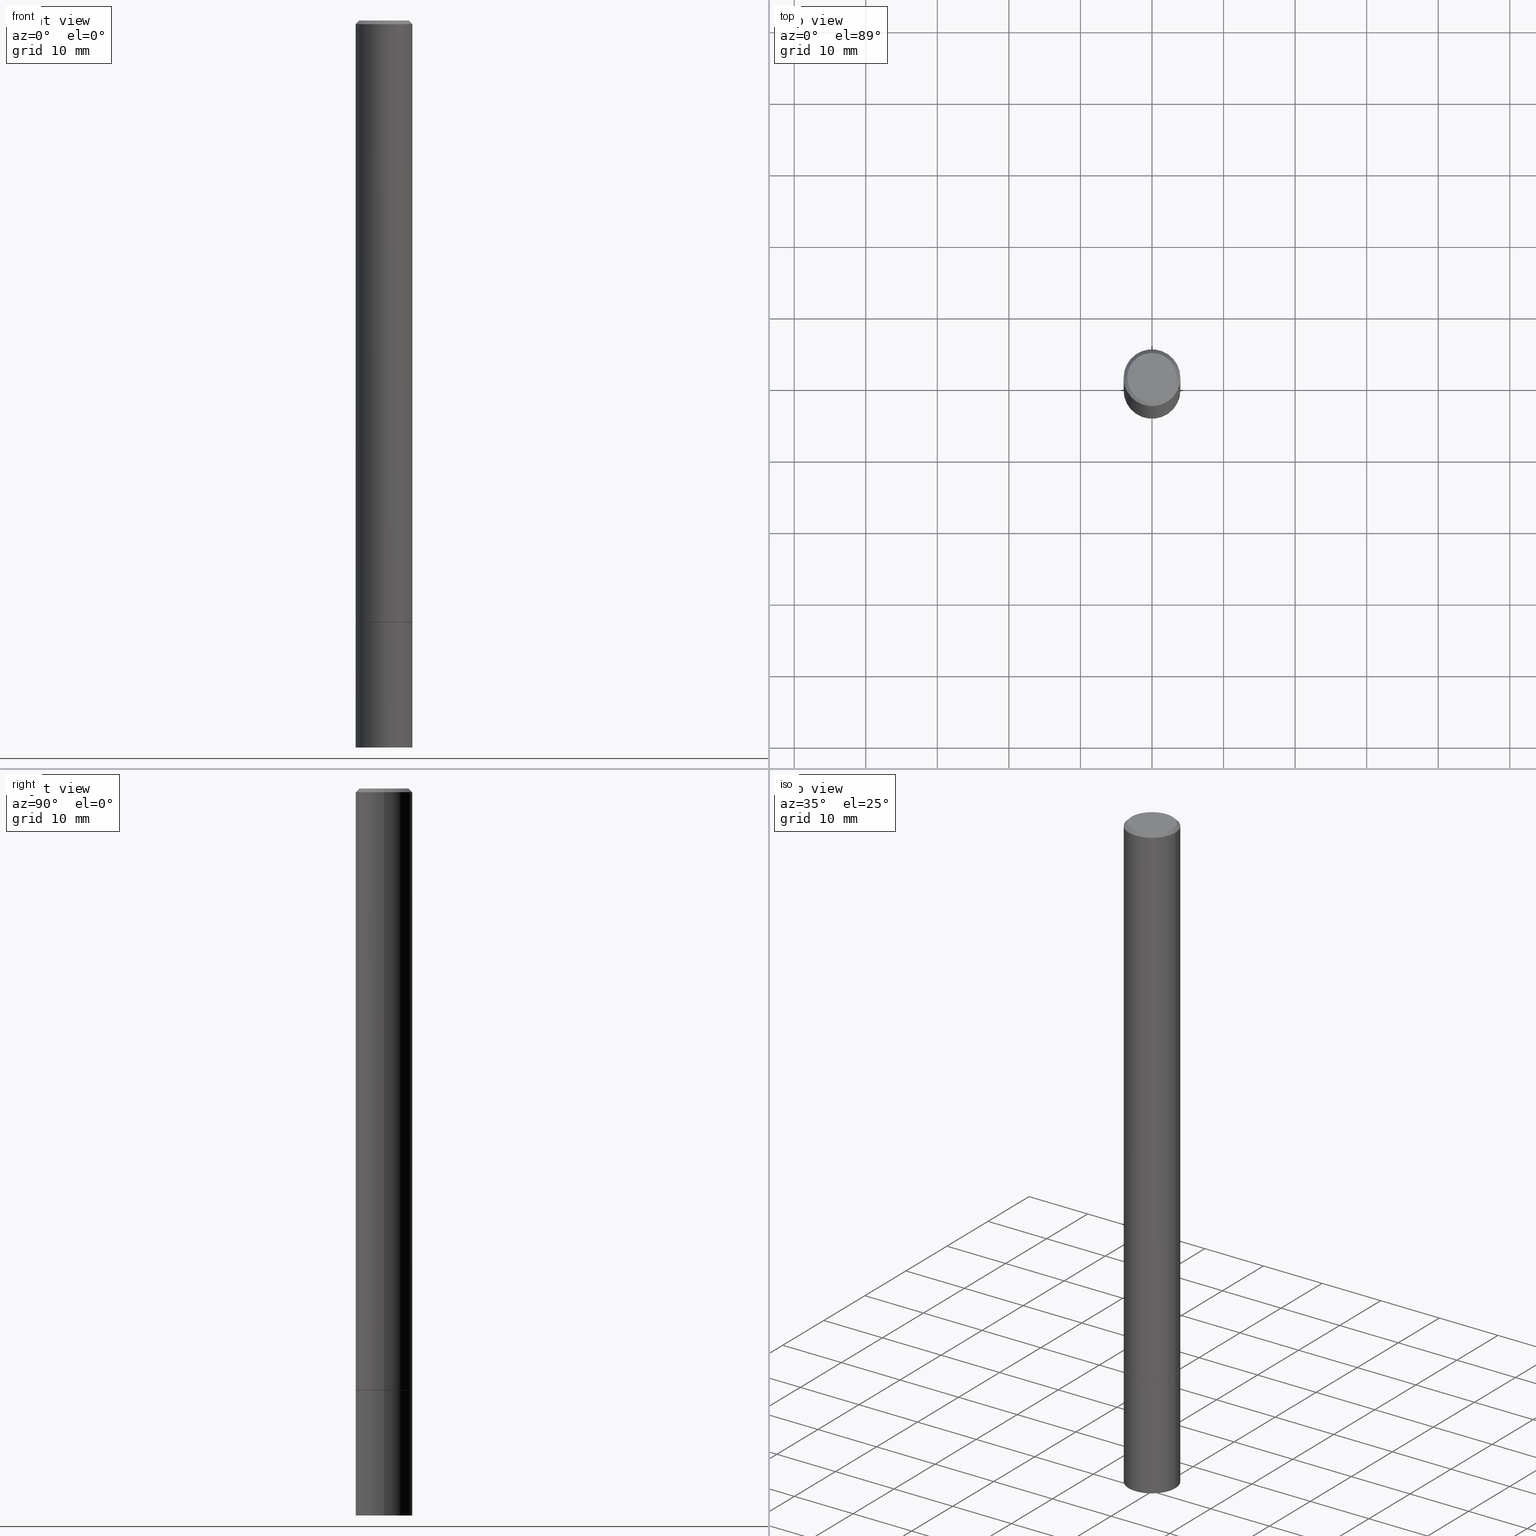
[diagram: canonical four-view strip — front | top / right | iso, engineering-drawing reading convention]
A machine part, canonical four-view strip (front | top / right | iso — engineering-drawing reading convention). The complete STEP part file that produces these views, byte-faithful:
ISO-10303-21;
HEADER;
FILE_DESCRIPTION (( 'STEP AP203' ),
    '1' );
FILE_NAME ('32263.STEP',
    '2024-02-27T14:51:23',
    ( '' ),
    ( '' ),
    'SwSTEP 2.0',
    'SolidWorks 2023',
    '' );
FILE_SCHEMA (( 'CONFIG_CONTROL_DESIGN' ));
ENDSEC;

DATA;
#1 = CARTESIAN_POINT ( 'NONE',  ( 0.1562499999999995559, -1.141782438928661752E-15, -0.02000000000000004205 ) ) ;
#2 = VERTEX_POINT ( 'NONE', #139 ) ;
#3 = CARTESIAN_POINT ( 'NONE',  ( 4.890937612370283668E-31, -6.982962677686305168E-17, -0.02000000000000004205 ) ) ;
#4 = VECTOR ( 'NONE', #261, 39.37007874015748143 ) ;
#5 = CC_DESIGN_APPROVAL ( #146, ( #249 ) ) ;
#6 = CARTESIAN_POINT ( 'NONE',  ( 0.1362499999999995659, -1.038262645562514969E-15, 6.957025900226674056E-30 ) ) ;
#7 = DIRECTION ( 'NONE',  ( -2.445468806185136597E-29, 3.491481338843145583E-15, 1.000000000000000000 ) ) ;
#8 = DIRECTION ( 'NONE',  ( 0.7071067811865466846, -7.319954787623252890E-15, -0.7071067811865483499 ) ) ;
#9 = ORIENTED_EDGE ( 'NONE', *, *, #296, .F. ) ;
#10 = LINE ( 'NONE', #98, #35 ) ;
#11 = VECTOR ( 'NONE', #337, 39.37007874015748143 ) ;
#12 = CARTESIAN_POINT ( 'NONE',  ( -0.1562500000000000000, -4.704839145218096672E-15, -3.311000000000000387 ) ) ;
#13 = DIRECTION ( 'NONE',  ( -2.445468806185136597E-29, 3.491481338843145583E-15, 1.000000000000000000 ) ) ;
#14 =( LENGTH_UNIT ( ) NAMED_UNIT ( * ) SI_UNIT ( $, .METRE. ) );
#15 = CARTESIAN_POINT ( 'NONE',  ( -0.1562500000000000000, -1.165463275018538400E-14, -4.000000000000000000 ) ) ;
#16 = CC_DESIGN_DATE_AND_TIME_ASSIGNMENT ( #205, #332, ( #249 ) ) ;
#17 = DIRECTION ( 'NONE',  ( -2.445468806185136597E-29, 3.491481338843145583E-15, 1.000000000000000000 ) ) ;
#18 = AXIS2_PLACEMENT_3D ( 'NONE', #122, #333, #250 ) ;
#19 = ADVANCED_FACE ( 'NONE', ( #82 ), #234, .T. ) ;
#20 = ORIENTED_EDGE ( 'NONE', *, *, #163, .F. ) ;
#21 = CARTESIAN_POINT ( 'NONE',  ( -0.1552499999999999991, -1.046066859698094559E-14, -3.312000000000000721 ) ) ;
#22 = AXIS2_PLACEMENT_3D ( 'NONE', #222, #42, #165 ) ;
#23 = CC_DESIGN_SECURITY_CLASSIFICATION ( #314, ( #278 ) ) ;
#24 = DIRECTION ( 'NONE',  ( -1.000000000000000000, 6.982962677686265922E-15, -4.876176775795935793E-29 ) ) ;
#25 = PERSON_AND_ORGANIZATION_ROLE ( 'classification_officer' ) ;
#26 = ORIENTED_EDGE ( 'NONE', *, *, #296, .T. ) ;
#27 = DIRECTION ( 'NONE',  ( 1.000000000000000000, -6.982962677686262766E-15, 0.000000000000000000 ) ) ;
#28 = PERSON_AND_ORGANIZATION ( #160, #322 ) ;
#29 = VERTEX_POINT ( 'NONE', #315 ) ;
#30 = DIRECTION ( 'NONE',  ( -2.445468806185136877E-29, 3.491481338843145188E-15, 1.000000000000000000 ) ) ;
#31 = APPROVAL_STATUS ( 'not_yet_approved' ) ;
#32 = CARTESIAN_POINT ( 'NONE',  ( 9.514286648347508022E-16, 0.1362499999999995659, -4.757143324173770774E-16 ) ) ;
#33 = EDGE_CURVE ( 'NONE', #138, #293, #292, .T. ) ;
#34 = CARTESIAN_POINT ( 'NONE',  ( 9.781875224740546387E-29, -1.396592535537258233E-14, -4.000000000000000000 ) ) ;
#35 = VECTOR ( 'NONE', #131, 39.37007874015748143 ) ;
#36 = DATE_AND_TIME ( #66, #218 ) ;
#37 = ORIENTED_EDGE ( 'NONE', *, *, #49, .T. ) ;
#38 = PERSON_AND_ORGANIZATION ( #160, #322 ) ;
#39 = DIRECTION ( 'NONE',  ( -2.445468806185136597E-29, 3.491481338843145583E-15, 1.000000000000000000 ) ) ;
#40 = DIRECTION ( 'NONE',  ( 2.445468806185136597E-29, -3.491481338843145583E-15, -1.000000000000000000 ) ) ;
#41 = AXIS2_PLACEMENT_3D ( 'NONE', #356, #215, #280 ) ;
#42 = DIRECTION ( 'NONE',  ( -2.438088387897960049E-29, 3.491481338843145188E-15, 1.000000000000000000 ) ) ;
#43 = DATE_AND_TIME ( #304, #64 ) ;
#44 = AXIS2_PLACEMENT_3D ( 'NONE', #3, #40, #352 ) ;
#45 = AXIS2_PLACEMENT_3D ( 'NONE', #246, #245, #208 ) ;
#46 = APPROVAL_PERSON_ORGANIZATION ( #235, #146, #320 ) ;
#47 =( NAMED_UNIT ( * ) SI_UNIT ( $, .STERADIAN. ) SOLID_ANGLE_UNIT ( ) );
#48 = DIRECTION ( 'NONE',  ( -2.445468806185136597E-29, 3.491481338843145583E-15, 1.000000000000000000 ) ) ;
#49 = EDGE_CURVE ( 'NONE', #105, #354, #68, .T. ) ;
#50 = FACE_OUTER_BOUND ( 'NONE', #180, .T. ) ;
#51 = CIRCLE ( 'NONE', #310, 0.1562500000000000000 ) ;
#52 = PLANE ( 'NONE',  #135 ) ;
#53 = PERSON_AND_ORGANIZATION_ROLE ( 'creator' ) ;
#54 = ORIENTED_EDGE ( 'NONE', *, *, #201, .T. ) ;
#55 = AXIS2_PLACEMENT_3D ( 'NONE', #302, #328, #181 ) ;
#56 = PERSON_AND_ORGANIZATION_ROLE ( 'creator' ) ;
#57 = COORDINATED_UNIVERSAL_TIME_OFFSET ( 5, 0, .BEHIND. ) ;
#58 = APPROVAL ( #326, 'UNSPECIFIED' ) ;
#59 = ORIENTED_EDGE ( 'NONE', *, *, #241, .F. ) ;
#60 = ORIENTED_EDGE ( 'NONE', *, *, #267, .F. ) ;
#61 = ORIENTED_EDGE ( 'NONE', *, *, #182, .F. ) ;
#62 = ORIENTED_EDGE ( 'NONE', *, *, #109, .F. ) ;
#63 = CONICAL_SURFACE ( 'NONE', #69, 0.1562499999999995559, 0.7853981633974471688 ) ;
#64 = LOCAL_TIME ( 9, 51, 23.00000000000000000, #124 ) ;
#65 = ADVANCED_FACE ( 'NONE', ( #316 ), #52, .T. ) ;
#66 = CALENDAR_DATE ( 2024, 27, 2 ) ;
#67 = DIRECTION ( 'NONE',  ( 1.000000000000000000, -6.982962677686268288E-15, 0.000000000000000000 ) ) ;
#68 = CIRCLE ( 'NONE', #199, 0.1562499999999995559 ) ;
#69 = AXIS2_PLACEMENT_3D ( 'NONE', #284, #221, #127 ) ;
#70 = DIRECTION ( 'NONE',  ( -2.445468806185136597E-29, 3.491481338843145583E-15, 1.000000000000000000 ) ) ;
#71 = CARTESIAN_POINT ( 'NONE',  ( -0.1562500000000000000, -1.165463275018538400E-14, -3.312000000000000277 ) ) ;
#72 = DIRECTION ( 'NONE',  ( 1.000000000000000000, -6.982962677686262766E-15, 0.000000000000000000 ) ) ;
#73 =( NAMED_UNIT ( * ) PLANE_ANGLE_UNIT ( ) SI_UNIT ( $, .RADIAN. ) );
#74 = CONICAL_SURFACE ( 'NONE', #294, 0.1552499999999999991, 0.7853981633972775267 ) ;
#75 = CC_DESIGN_PERSON_AND_ORGANIZATION_ASSIGNMENT ( #115, #56, ( #278 ) ) ;
#76 = LOCAL_TIME ( 9, 51, 23.00000000000000000, #229 ) ;
#77 = FACE_OUTER_BOUND ( 'NONE', #232, .T. ) ;
#78 = LINE ( 'NONE', #362, #262 ) ;
#79 = CARTESIAN_POINT ( 'NONE',  ( 1.091087918388576795E-15, 0.1562499999999860389, -4.000000000000000888 ) ) ;
#80 = CYLINDRICAL_SURFACE ( 'NONE', #313, 0.1562500000000000000 ) ;
#81 = EDGE_CURVE ( 'NONE', #290, #2, #143, .T. ) ;
#82 = FACE_OUTER_BOUND ( 'NONE', #330, .T. ) ;
#83 = CARTESIAN_POINT ( 'NONE',  ( 0.000000000000000000, 0.000000000000000000, 0.000000000000000000 ) ) ;
#84 = PERSON_AND_ORGANIZATION_ROLE ( 'design_supplier' ) ;
#85 = DIRECTION ( 'NONE',  ( 1.000000000000000000, -6.982962677686266711E-15, 4.876176775795935232E-29 ) ) ;
#86 = ADVANCED_FACE ( 'NONE', ( #153 ), #149, .F. ) ;
#87 = VECTOR ( 'NONE', #260, 39.37007874015748143 ) ;
#88 = VERTEX_POINT ( 'NONE', #347 ) ;
#89 = ORIENTED_EDGE ( 'NONE', *, *, #81, .T. ) ;
#90 = CARTESIAN_POINT ( 'NONE',  ( 0.1562500000000000000, -1.265138263129813571E-14, -3.311000000000000387 ) ) ;
#91 = FACE_OUTER_BOUND ( 'NONE', #351, .T. ) ;
#92 = ORIENTED_EDGE ( 'NONE', *, *, #267, .T. ) ;
#93 = AXIS2_PLACEMENT_3D ( 'NONE', #134, #48, #197 ) ;
#94 = ORIENTED_EDGE ( 'NONE', *, *, #305, .T. ) ;
#95 = SHAPE_DEFINITION_REPRESENTATION ( #111, #164 ) ;
#96 = LINE ( 'NONE', #125, #123 ) ;
#97 = ORIENTED_EDGE ( 'NONE', *, *, #305, .F. ) ;
#98 = CARTESIAN_POINT ( 'NONE',  ( -0.1562499999999998057, 1.110223024625155160E-15, -7.685836078523279949E-30 ) ) ;
#99 = APPROVAL_ROLE ( '' ) ;
#100 = ADVANCED_FACE ( 'NONE', ( #303 ), #184, .T. ) ;
#101 =( CONVERSION_BASED_UNIT ( 'INCH', #306 ) LENGTH_UNIT ( ) NAMED_UNIT ( #128 ) );
#102 = CARTESIAN_POINT ( 'NONE',  ( 0.000000000000000000, 0.000000000000000000, 0.000000000000000000 ) ) ;
#103 = AXIS2_PLACEMENT_3D ( 'NONE', #359, #104, #223 ) ;
#104 = DIRECTION ( 'NONE',  ( -2.445468806185136597E-29, 3.491481338843145583E-15, 1.000000000000000000 ) ) ;
#105 = VERTEX_POINT ( 'NONE', #1 ) ;
#106 = CARTESIAN_POINT ( 'NONE',  ( 0.1552499999999999991, -1.264789114995929428E-14, -3.312000000000000721 ) ) ;
#107 = ORIENTED_EDGE ( 'NONE', *, *, #339, .F. ) ;
#108 = FACE_OUTER_BOUND ( 'NONE', #213, .T. ) ;
#109 = EDGE_CURVE ( 'NONE', #29, #152, #360, .T. ) ;
#110 = ORIENTED_EDGE ( 'NONE', *, *, #339, .T. ) ;
#111 = PRODUCT_DEFINITION_SHAPE ( 'NONE', 'NONE',  #249 ) ;
#112 = CIRCLE ( 'NONE', #300, 0.1362499999999995659 ) ;
#113 = DESIGN_CONTEXT ( 'detailed design', #285, 'design' ) ;
#114 = EDGE_LOOP ( 'NONE', ( #301, #26, #155, #327 ) ) ;
#115 = PERSON_AND_ORGANIZATION ( #160, #322 ) ;
#116 = ORIENTED_EDGE ( 'NONE', *, *, #214, .T. ) ;
#117 = CLOSED_SHELL ( 'NONE', ( #273, #65, #226, #220 ) ) ;
#118 = ORIENTED_EDGE ( 'NONE', *, *, #185, .T. ) ;
#119 = CARTESIAN_POINT ( 'NONE',  ( 0.000000000000000000, 0.000000000000000000, 0.000000000000000000 ) ) ;
#120 = EDGE_CURVE ( 'NONE', #138, #88, #162, .T. ) ;
#121 = EDGE_LOOP ( 'NONE', ( #323, #236, #92, #9 ) ) ;
#122 = CARTESIAN_POINT ( 'NONE',  ( 0.000000000000000000, 0.000000000000000000, 0.000000000000000000 ) ) ;
#123 = VECTOR ( 'NONE', #30, 39.37007874015748143 ) ;
#124 = COORDINATED_UNIVERSAL_TIME_OFFSET ( 5, 0, .BEHIND. ) ;
#125 = CARTESIAN_POINT ( 'NONE',  ( 0.1562499999999998057, -1.091087918388477793E-15, 7.619026212181139167E-30 ) ) ;
#126 = CC_DESIGN_DATE_AND_TIME_ASSIGNMENT ( #266, #350, ( #314 ) ) ;
#127 = DIRECTION ( 'NONE',  ( -1.000000000000000000, 6.982962677686267499E-15, 0.000000000000000000 ) ) ;
#128 = DIMENSIONAL_EXPONENTS ( 1.000000000000000000, 0.000000000000000000, 0.000000000000000000, 0.000000000000000000, 0.000000000000000000, 0.000000000000000000, 0.000000000000000000 ) ;
#129 = CARTESIAN_POINT ( 'NONE',  ( -0.1562499999999995559, 1.021258291611613114E-15, -0.02000000000000004205 ) ) ;
#130 = ADVANCED_FACE ( 'NONE', ( #91 ), #224, .T. ) ;
#131 = DIRECTION ( 'NONE',  ( -2.445468806185136877E-29, 3.491481338843145188E-15, 1.000000000000000000 ) ) ;
#132 = DIRECTION ( 'NONE',  ( 1.000000000000000000, -6.982962677686266711E-15, 4.876176775795936353E-29 ) ) ;
#133 = DIRECTION ( 'NONE',  ( 1.000000000000000000, -6.982962677686266711E-15, 4.876176775795935793E-29 ) ) ;
#134 = CARTESIAN_POINT ( 'NONE',  ( 8.099392686085173296E-29, -1.156378619424850191E-14, -3.312000000000000721 ) ) ;
#135 = AXIS2_PLACEMENT_3D ( 'NONE', #79, #142, #24 ) ;
#136 = LINE ( 'NONE', #106, #277 ) ;
#137 = FACE_OUTER_BOUND ( 'NONE', #178, .T. ) ;
#138 = VERTEX_POINT ( 'NONE', #299 ) ;
#139 = CARTESIAN_POINT ( 'NONE',  ( 0.1562500000000000000, -1.265487411263697714E-14, -3.312000000000000277 ) ) ;
#140 = ORIENTED_EDGE ( 'NONE', *, *, #363, .T. ) ;
#141 = APPLICATION_CONTEXT ( 'configuration controlled 3d designs of mechanical parts and assemblies' ) ;
#142 = DIRECTION ( 'NONE',  ( 2.438088387897960049E-29, -3.491481338843145188E-15, -1.000000000000000000 ) ) ;
#143 = CIRCLE ( 'NONE', #340, 0.1562500000000000000 ) ;
#144 = APPROVAL_STATUS ( 'not_yet_approved' ) ;
#145 = VERTEX_POINT ( 'NONE', #90 ) ;
#146 = APPROVAL ( #31, 'UNSPECIFIED' ) ;
#147 = CARTESIAN_POINT ( 'NONE',  ( 8.099392686085172175E-29, -1.156378619424849876E-14, -3.312000000000000277 ) ) ;
#148 = COORDINATED_UNIVERSAL_TIME_OFFSET ( 5, 0, .BEHIND. ) ;
#149 = PLANE ( 'NONE',  #357 ) ;
#150 = APPROVAL_ROLE ( '' ) ;
#151 = FACE_OUTER_BOUND ( 'NONE', #244, .T. ) ;
#152 = VERTEX_POINT ( 'NONE', #6 ) ;
#153 = FACE_OUTER_BOUND ( 'NONE', #365, .T. ) ;
#154 = CIRCLE ( 'NONE', #259, 0.1562500000000000000 ) ;
#155 = ORIENTED_EDGE ( 'NONE', *, *, #163, .T. ) ;
#156 = DIRECTION ( 'NONE',  ( -2.445468806185136597E-29, 3.491481338843145583E-15, 1.000000000000000000 ) ) ;
#157 = APPROVAL_PERSON_ORGANIZATION ( #243, #58, #99 ) ;
#158 = PERSON_AND_ORGANIZATION ( #160, #322 ) ;
#159 = MECHANICAL_CONTEXT ( 'NONE', #141, 'mechanical' ) ;
#160 = PERSON ( 'UNSPECIFIED', 'UNSPECIFIED', 'UNSPECIFIED', ('UNSPECIFIED'), ('UNSPECIFIED'), ('UNSPECIFIED') ) ;
#161 = ORIENTED_EDGE ( 'NONE', *, *, #355, .F. ) ;
#162 = CIRCLE ( 'NONE', #240, 0.1552499999999999991 ) ;
#163 = EDGE_CURVE ( 'NONE', #145, #105, #96, .T. ) ;
#164 = ADVANCED_BREP_SHAPE_REPRESENTATION ( '32263', ( #210, #334, #252 ), #331 ) ;
#165 = DIRECTION ( 'NONE',  ( 1.000000000000000000, -6.982962677686265922E-15, 4.876176775795935793E-29 ) ) ;
#166 = DIRECTION ( 'NONE',  ( 1.000000000000000000, -6.982962677686262766E-15, 0.000000000000000000 ) ) ;
#167 = CARTESIAN_POINT ( 'NONE',  ( 0.000000000000000000, 0.000000000000000000, 0.000000000000000000 ) ) ;
#168 = PLANE ( 'NONE',  #22 ) ;
#169 = CARTESIAN_POINT ( 'NONE',  ( -0.1562499999999995559, 1.021258291611613114E-15, -0.02000000000000004205 ) ) ;
#170 = CC_DESIGN_PERSON_AND_ORGANIZATION_ASSIGNMENT ( #227, #53, ( #249 ) ) ;
#171 = CONICAL_SURFACE ( 'NONE', #45, 0.1552499999999999991, 0.7853981633972775267 ) ;
#172 = ADVANCED_FACE ( 'NONE', ( #151 ), #171, .T. ) ;
#173 = ORIENTED_EDGE ( 'NONE', *, *, #209, .T. ) ;
#174 = AXIS2_PLACEMENT_3D ( 'NONE', #83, #291, #85 ) ;
#175 = CC_DESIGN_APPROVAL ( #58, ( #314 ) ) ;
#176 = SECURITY_CLASSIFICATION_LEVEL ( 'unclassified' ) ;
#177 = CALENDAR_DATE ( 2024, 27, 2 ) ;
#178 = EDGE_LOOP ( 'NONE', ( #198, #230 ) ) ;
#179 = ORIENTED_EDGE ( 'NONE', *, *, #214, .F. ) ;
#180 = EDGE_LOOP ( 'NONE', ( #118, #140, #59, #196 ) ) ;
#181 = DIRECTION ( 'NONE',  ( 1.000000000000000000, -6.982962677686262766E-15, 0.000000000000000000 ) ) ;
#182 = EDGE_CURVE ( 'NONE', #145, #293, #203, .T. ) ;
#183 = AXIS2_PLACEMENT_3D ( 'NONE', #189, #255, #307 ) ;
#184 = CYLINDRICAL_SURFACE ( 'NONE', #335, 0.1562499999999998057 ) ;
#185 = EDGE_CURVE ( 'NONE', #188, #207, #283, .T. ) ;
#186 = ORIENTED_EDGE ( 'NONE', *, *, #182, .T. ) ;
#187 = CARTESIAN_POINT ( 'NONE',  ( 8.099392686085173296E-29, -1.156378619424850191E-14, -3.312000000000000721 ) ) ;
#188 = VERTEX_POINT ( 'NONE', #211 ) ;
#189 = CARTESIAN_POINT ( 'NONE',  ( 9.781875224740546387E-29, -1.396592535537258233E-14, -4.000000000000000000 ) ) ;
#190 = CARTESIAN_POINT ( 'NONE',  ( 8.099392686085173296E-29, -1.156378619424850191E-14, -3.312000000000000721 ) ) ;
#191 = LINE ( 'NONE', #358, #251 ) ;
#192 = AXIS2_PLACEMENT_3D ( 'NONE', #193, #309, #194 ) ;
#193 = CARTESIAN_POINT ( 'NONE',  ( 1.091087918388560032E-15, 0.1562499999999884259, -3.312000000000000721 ) ) ;
#194 = DIRECTION ( 'NONE',  ( -1.000000000000000000, 6.982962677686265922E-15, -4.876176775795935793E-29 ) ) ;
#195 = APPROVAL ( #144, 'UNSPECIFIED' ) ;
#196 = ORIENTED_EDGE ( 'NONE', *, *, #201, .F. ) ;
#197 = DIRECTION ( 'NONE',  ( 1.000000000000000000, -6.982962677686268288E-15, 0.000000000000000000 ) ) ;
#198 = ORIENTED_EDGE ( 'NONE', *, *, #209, .F. ) ;
#199 = AXIS2_PLACEMENT_3D ( 'NONE', #202, #297, #317 ) ;
#200 = LOCAL_TIME ( 9, 51, 23.00000000000000000, #57 ) ;
#201 = EDGE_CURVE ( 'NONE', #188, #2, #78, .T. ) ;
#202 = CARTESIAN_POINT ( 'NONE',  ( 4.890937612370283668E-31, -6.982962677686305168E-17, -0.02000000000000004205 ) ) ;
#203 = CIRCLE ( 'NONE', #55, 0.1562500000000000000 ) ;
#204 = APPROVAL_PERSON_ORGANIZATION ( #28, #195, #150 ) ;
#205 = DATE_AND_TIME ( #353, #76 ) ;
#206 = UNCERTAINTY_MEASURE_WITH_UNIT (LENGTH_MEASURE( 1.000000000000000082E-05 ), #101, 'distance_accuracy_value', 'NONE');
#207 = VERTEX_POINT ( 'NONE', #15 ) ;
#208 = DIRECTION ( 'NONE',  ( 1.000000000000000000, -6.982962677686268288E-15, 0.000000000000000000 ) ) ;
#209 = EDGE_CURVE ( 'NONE', #88, #138, #217, .T. ) ;
#210 = MANIFOLD_SOLID_BREP ( 'Body-Move/Copy2[1]', #117 ) ;
#211 = CARTESIAN_POINT ( 'NONE',  ( 0.1562500000000000000, -1.505701327376106229E-14, -4.000000000000000000 ) ) ;
#212 = DIRECTION ( 'NONE',  ( 1.000000000000000000, 0.000000000000000000, 0.000000000000000000 ) ) ;
#213 = EDGE_LOOP ( 'NONE', ( #269, #344, #54, #295 ) ) ;
#214 = EDGE_CURVE ( 'NONE', #29, #354, #258, .T. ) ;
#215 = DIRECTION ( 'NONE',  ( -2.445468806185136597E-29, 3.491481338843145583E-15, 1.000000000000000000 ) ) ;
#216 = APPROVAL_DATE_TIME ( #43, #58 ) ;
#217 = CIRCLE ( 'NONE', #93, 0.1552499999999999991 ) ;
#218 = LOCAL_TIME ( 9, 51, 23.00000000000000000, #148 ) ;
#219 = FACE_OUTER_BOUND ( 'NONE', #276, .T. ) ;
#220 = ADVANCED_FACE ( 'NONE', ( #108 ), #286, .T. ) ;
#221 = DIRECTION ( 'NONE',  ( 2.445468806185136597E-29, -3.491481338843145583E-15, -1.000000000000000000 ) ) ;
#222 = CARTESIAN_POINT ( 'NONE',  ( 8.099392686085172175E-29, -1.156378619424849876E-14, -3.312000000000000277 ) ) ;
#223 = DIRECTION ( 'NONE',  ( 1.000000000000000000, -6.982962677686266711E-15, 4.876176775795936353E-29 ) ) ;
#224 = CONICAL_SURFACE ( 'NONE', #44, 0.1562499999999995559, 0.7853981633974471688 ) ;
#225 = CARTESIAN_POINT ( 'NONE',  ( 8.096947217278987693E-29, -1.156029471290965575E-14, -3.311000000000000387 ) ) ;
#226 = ADVANCED_FACE ( 'NONE', ( #77 ), #228, .F. ) ;
#227 = PERSON_AND_ORGANIZATION ( #160, #322 ) ;
#228 = PLANE ( 'NONE',  #192 ) ;
#229 = COORDINATED_UNIVERSAL_TIME_OFFSET ( 5, 0, .BEHIND. ) ;
#230 = ORIENTED_EDGE ( 'NONE', *, *, #120, .F. ) ;
#231 = DIRECTION ( 'NONE',  ( -1.000000000000000000, 6.982962677686265922E-15, -4.876176775795935793E-29 ) ) ;
#232 = EDGE_LOOP ( 'NONE', ( #264, #89 ) ) ;
#233 = DIRECTION ( 'NONE',  ( 1.000000000000000000, -6.982962677686268288E-15, 0.000000000000000000 ) ) ;
#234 = CYLINDRICAL_SURFACE ( 'NONE', #174, 0.1562499999999998057 ) ;
#235 = PERSON_AND_ORGANIZATION ( #160, #322 ) ;
#236 = ORIENTED_EDGE ( 'NONE', *, *, #120, .T. ) ;
#237 = ORIENTED_EDGE ( 'NONE', *, *, #33, .T. ) ;
#238 = APPLICATION_PROTOCOL_DEFINITION ( 'international standard', 'config_control_design', 1994, #285 ) ;
#239 = CARTESIAN_POINT ( 'NONE',  ( 8.099392686085172175E-29, -1.156378619424849876E-14, -3.312000000000000277 ) ) ;
#240 = AXIS2_PLACEMENT_3D ( 'NONE', #187, #39, #233 ) ;
#241 = EDGE_CURVE ( 'NONE', #2, #290, #51, .T. ) ;
#242 = CC_DESIGN_APPROVAL ( #195, ( #278 ) ) ;
#243 = PERSON_AND_ORGANIZATION ( #160, #322 ) ;
#244 = EDGE_LOOP ( 'NONE', ( #173, #237, #61, #60 ) ) ;
#245 = DIRECTION ( 'NONE',  ( -2.445468806185136597E-29, 3.491481338843145583E-15, 1.000000000000000000 ) ) ;
#246 = CARTESIAN_POINT ( 'NONE',  ( 8.099392686085173296E-29, -1.156378619424850191E-14, -3.312000000000000721 ) ) ;
#247 = DIRECTION ( 'NONE',  ( 0.000000000000000000, 0.000000000000000000, 1.000000000000000000 ) ) ;
#248 = PERSON_AND_ORGANIZATION_ROLE ( 'design_owner' ) ;
#249 = PRODUCT_DEFINITION ( 'UNKNOWN', '', #278, #113 ) ;
#250 = DIRECTION ( 'NONE',  ( 1.000000000000000000, -6.982962677686266711E-15, 4.876176775795935793E-29 ) ) ;
#251 = VECTOR ( 'NONE', #8, 39.37007874015748143 ) ;
#252 = AXIS2_PLACEMENT_3D ( 'NONE', #271, #247, #212 ) ;
#253 = LINE ( 'NONE', #257, #11 ) ;
#254 = CLOSED_SHELL ( 'NONE', ( #172, #19, #361, #130, #100, #349, #281, #86 ) ) ;
#255 = DIRECTION ( 'NONE',  ( -2.445468806185136597E-29, 3.491481338843145583E-15, 1.000000000000000000 ) ) ;
#256 = CC_DESIGN_PERSON_AND_ORGANIZATION_ASSIGNMENT ( #158, #25, ( #314 ) ) ;
#257 = CARTESIAN_POINT ( 'NONE',  ( -0.1562500000000000000, 1.110223024625156540E-15, -7.685836078523291160E-30 ) ) ;
#258 = LINE ( 'NONE', #169, #87 ) ;
#259 = AXIS2_PLACEMENT_3D ( 'NONE', #225, #70, #166 ) ;
#260 = DIRECTION ( 'NONE',  ( -0.7071067811865466846, 2.468850131082247989E-15, -0.7071067811865483499 ) ) ;
#261 = DIRECTION ( 'NONE',  ( -0.7071067811864267805, 7.493145998869918709E-15, 0.7071067811866682540 ) ) ;
#262 = VECTOR ( 'NONE', #289, 39.37007874015748143 ) ;
#263 = APPROVAL_DATE_TIME ( #36, #195 ) ;
#264 = ORIENTED_EDGE ( 'NONE', *, *, #241, .T. ) ;
#265 = DIRECTION ( 'NONE',  ( -2.445468806185136597E-29, 3.491481338843145583E-15, 1.000000000000000000 ) ) ;
#266 = DATE_AND_TIME ( #268, #336 ) ;
#267 = EDGE_CURVE ( 'NONE', #88, #145, #136, .T. ) ;
#268 = CALENDAR_DATE ( 2024, 27, 2 ) ;
#269 = ORIENTED_EDGE ( 'NONE', *, *, #363, .F. ) ;
#270 = DIRECTION ( 'NONE',  ( 1.000000000000000000, -6.982962677686262766E-15, 0.000000000000000000 ) ) ;
#271 = CARTESIAN_POINT ( 'NONE',  ( 0.000000000000000000, 0.000000000000000000, 0.000000000000000000 ) ) ;
#272 = ORIENTED_EDGE ( 'NONE', *, *, #49, .F. ) ;
#273 = ADVANCED_FACE ( 'NONE', ( #50 ), #80, .T. ) ;
#274 = COORDINATED_UNIVERSAL_TIME_OFFSET ( 5, 0, .BEHIND. ) ;
#275 = DIRECTION ( 'NONE',  ( -2.445468806185136597E-29, 3.491481338843145583E-15, 1.000000000000000000 ) ) ;
#276 = EDGE_LOOP ( 'NONE', ( #107, #94, #37, #179 ) ) ;
#277 = VECTOR ( 'NONE', #312, 39.37007874015748143 ) ;
#278 = PRODUCT_DEFINITION_FORMATION_WITH_SPECIFIED_SOURCE ( 'ANY', '', #342, .NOT_KNOWN. ) ;
#279 = DIRECTION ( 'NONE',  ( 1.000000000000000000, -6.982962677686266711E-15, 4.876176775795935232E-29 ) ) ;
#280 = DIRECTION ( 'NONE',  ( 1.000000000000000000, -6.982962677686267499E-15, 0.000000000000000000 ) ) ;
#281 = ADVANCED_FACE ( 'NONE', ( #137 ), #168, .F. ) ;
#282 = DIRECTION ( 'NONE',  ( -2.445468806185136597E-29, 3.491481338843145583E-15, 1.000000000000000000 ) ) ;
#283 = CIRCLE ( 'NONE', #366, 0.1562500000000000000 ) ;
#284 = CARTESIAN_POINT ( 'NONE',  ( 4.890937612370283668E-31, -6.982962677686305168E-17, -0.02000000000000004205 ) ) ;
#285 = APPLICATION_CONTEXT ( 'configuration controlled 3d designs of mechanical parts and assemblies' ) ;
#286 = CYLINDRICAL_SURFACE ( 'NONE', #103, 0.1562500000000000000 ) ;
#287 = EDGE_CURVE ( 'NONE', #354, #105, #321, .T. ) ;
#288 = FACE_OUTER_BOUND ( 'NONE', #121, .T. ) ;
#289 = DIRECTION ( 'NONE',  ( -2.445468806185136877E-29, 3.491481338843145188E-15, 1.000000000000000000 ) ) ;
#290 = VERTEX_POINT ( 'NONE', #71 ) ;
#291 = DIRECTION ( 'NONE',  ( -2.445468806185136597E-29, 3.491481338843145583E-15, 1.000000000000000000 ) ) ;
#292 = LINE ( 'NONE', #21, #4 ) ;
#293 = VERTEX_POINT ( 'NONE', #12 ) ;
#294 = AXIS2_PLACEMENT_3D ( 'NONE', #190, #7, #67 ) ;
#295 = ORIENTED_EDGE ( 'NONE', *, *, #81, .F. ) ;
#296 = EDGE_CURVE ( 'NONE', #293, #145, #154, .T. ) ;
#297 = DIRECTION ( 'NONE',  ( -2.445468806185136597E-29, 3.491481338843145583E-15, 1.000000000000000000 ) ) ;
#298 = PRODUCT_RELATED_PRODUCT_CATEGORY ( 'detail', '', ( #342 ) ) ;
#299 = CARTESIAN_POINT ( 'NONE',  ( -0.1552499999999999991, -1.045537014263272161E-14, -3.312000000000000721 ) ) ;
#300 = AXIS2_PLACEMENT_3D ( 'NONE', #102, #282, #133 ) ;
#301 = ORIENTED_EDGE ( 'NONE', *, *, #343, .F. ) ;
#302 = CARTESIAN_POINT ( 'NONE',  ( 8.096947217278987693E-29, -1.156029471290965575E-14, -3.311000000000000387 ) ) ;
#303 = FACE_OUTER_BOUND ( 'NONE', #114, .T. ) ;
#304 = CALENDAR_DATE ( 2024, 27, 2 ) ;
#305 = EDGE_CURVE ( 'NONE', #152, #105, #191, .T. ) ;
#306 = LENGTH_MEASURE_WITH_UNIT ( LENGTH_MEASURE( 0.02539999999999999897 ), #14 );
#307 = DIRECTION ( 'NONE',  ( 1.000000000000000000, -6.982962677686262766E-15, 0.000000000000000000 ) ) ;
#308 = CC_DESIGN_PERSON_AND_ORGANIZATION_ASSIGNMENT ( #38, #248, ( #342 ) ) ;
#309 = DIRECTION ( 'NONE',  ( 2.438088387897960049E-29, -3.491481338843145188E-15, -1.000000000000000000 ) ) ;
#310 = AXIS2_PLACEMENT_3D ( 'NONE', #239, #17, #72 ) ;
#311 = APPROVAL_DATE_TIME ( #338, #146 ) ;
#312 = DIRECTION ( 'NONE',  ( 0.7071067811864267805, -2.468850131080992517E-15, 0.7071067811866682540 ) ) ;
#313 = AXIS2_PLACEMENT_3D ( 'NONE', #167, #13, #132 ) ;
#314 = SECURITY_CLASSIFICATION ( '', '', #176 ) ;
#315 = CARTESIAN_POINT ( 'NONE',  ( -0.1362499999999995659, 9.863434782231818597E-16, -6.775751096333118864E-30 ) ) ;
#316 = FACE_OUTER_BOUND ( 'NONE', #341, .T. ) ;
#317 = DIRECTION ( 'NONE',  ( 1.000000000000000000, -6.982962677686267499E-15, 0.000000000000000000 ) ) ;
#318 = CC_DESIGN_PERSON_AND_ORGANIZATION_ASSIGNMENT ( #364, #84, ( #278 ) ) ;
#319 = ORIENTED_EDGE ( 'NONE', *, *, #185, .F. ) ;
#320 = APPROVAL_ROLE ( '' ) ;
#321 = CIRCLE ( 'NONE', #41, 0.1562499999999995559 ) ;
#322 = ORGANIZATION ( 'UNSPECIFIED', 'UNSPECIFIED', '' ) ;
#323 = ORIENTED_EDGE ( 'NONE', *, *, #33, .F. ) ;
#324 = APPLICATION_PROTOCOL_DEFINITION ( 'international standard', 'config_control_design', 1994, #141 ) ;
#325 = ORIENTED_EDGE ( 'NONE', *, *, #343, .T. ) ;
#326 = APPROVAL_STATUS ( 'not_yet_approved' ) ;
#327 = ORIENTED_EDGE ( 'NONE', *, *, #287, .F. ) ;
#328 = DIRECTION ( 'NONE',  ( -2.445468806185136597E-29, 3.491481338843145583E-15, 1.000000000000000000 ) ) ;
#329 = ORIENTED_EDGE ( 'NONE', *, *, #109, .T. ) ;
#330 = EDGE_LOOP ( 'NONE', ( #186, #325, #272, #20 ) ) ;
#331 =( GEOMETRIC_REPRESENTATION_CONTEXT ( 3 ) GLOBAL_UNCERTAINTY_ASSIGNED_CONTEXT ( ( #206 ) ) GLOBAL_UNIT_ASSIGNED_CONTEXT ( ( #101, #73, #47 ) ) REPRESENTATION_CONTEXT ( 'NONE', 'WORKASPACE' ) );
#332 = DATE_TIME_ROLE ( 'creation_date' ) ;
#333 = DIRECTION ( 'NONE',  ( -2.445468806185136597E-29, 3.491481338843145583E-15, 1.000000000000000000 ) ) ;
#334 = MANIFOLD_SOLID_BREP ( 'Body-Move/Copy2[2]', #254 ) ;
#335 = AXIS2_PLACEMENT_3D ( 'NONE', #119, #275, #279 ) ;
#336 = LOCAL_TIME ( 9, 51, 23.00000000000000000, #274 ) ;
#337 = DIRECTION ( 'NONE',  ( -2.445468806185136877E-29, 3.491481338843145188E-15, 1.000000000000000000 ) ) ;
#338 = DATE_AND_TIME ( #177, #200 ) ;
#339 = EDGE_CURVE ( 'NONE', #152, #29, #112, .T. ) ;
#340 = AXIS2_PLACEMENT_3D ( 'NONE', #147, #265, #27 ) ;
#341 = EDGE_LOOP ( 'NONE', ( #319, #161 ) ) ;
#342 = PRODUCT ( '32263', '32263', '', ( #159 ) ) ;
#343 = EDGE_CURVE ( 'NONE', #293, #354, #10, .T. ) ;
#344 = ORIENTED_EDGE ( 'NONE', *, *, #355, .T. ) ;
#345 = DIRECTION ( 'NONE',  ( 2.438088387897960049E-29, -3.491481338843145188E-15, -1.000000000000000000 ) ) ;
#346 = CIRCLE ( 'NONE', #183, 0.1562500000000000000 ) ;
#347 = CARTESIAN_POINT ( 'NONE',  ( 0.1552499999999999991, -1.264789114995929428E-14, -3.312000000000000721 ) ) ;
#348 = ORIENTED_EDGE ( 'NONE', *, *, #287, .T. ) ;
#349 = ADVANCED_FACE ( 'NONE', ( #288 ), #74, .T. ) ;
#350 = DATE_TIME_ROLE ( 'classification_date' ) ;
#351 = EDGE_LOOP ( 'NONE', ( #97, #62, #116, #348 ) ) ;
#352 = DIRECTION ( 'NONE',  ( -1.000000000000000000, 6.982962677686267499E-15, 0.000000000000000000 ) ) ;
#353 = CALENDAR_DATE ( 2024, 27, 2 ) ;
#354 = VERTEX_POINT ( 'NONE', #129 ) ;
#355 = EDGE_CURVE ( 'NONE', #207, #188, #346, .T. ) ;
#356 = CARTESIAN_POINT ( 'NONE',  ( 4.890937612370283668E-31, -6.982962677686305168E-17, -0.02000000000000004205 ) ) ;
#357 = AXIS2_PLACEMENT_3D ( 'NONE', #32, #345, #231 ) ;
#358 = CARTESIAN_POINT ( 'NONE',  ( 0.1562499999999995559, -1.141782438928661752E-15, -0.02000000000000004205 ) ) ;
#359 = CARTESIAN_POINT ( 'NONE',  ( 0.000000000000000000, 0.000000000000000000, 0.000000000000000000 ) ) ;
#360 = CIRCLE ( 'NONE', #18, 0.1362499999999995659 ) ;
#361 = ADVANCED_FACE ( 'NONE', ( #219 ), #63, .T. ) ;
#362 = CARTESIAN_POINT ( 'NONE',  ( 0.1562500000000000000, -1.091087918388479174E-15, 7.619026212181150377E-30 ) ) ;
#363 = EDGE_CURVE ( 'NONE', #207, #290, #253, .T. ) ;
#364 = PERSON_AND_ORGANIZATION ( #160, #322 ) ;
#365 = EDGE_LOOP ( 'NONE', ( #329, #110 ) ) ;
#366 = AXIS2_PLACEMENT_3D ( 'NONE', #34, #156, #270 ) ;
ENDSEC;
END-ISO-10303-21;
